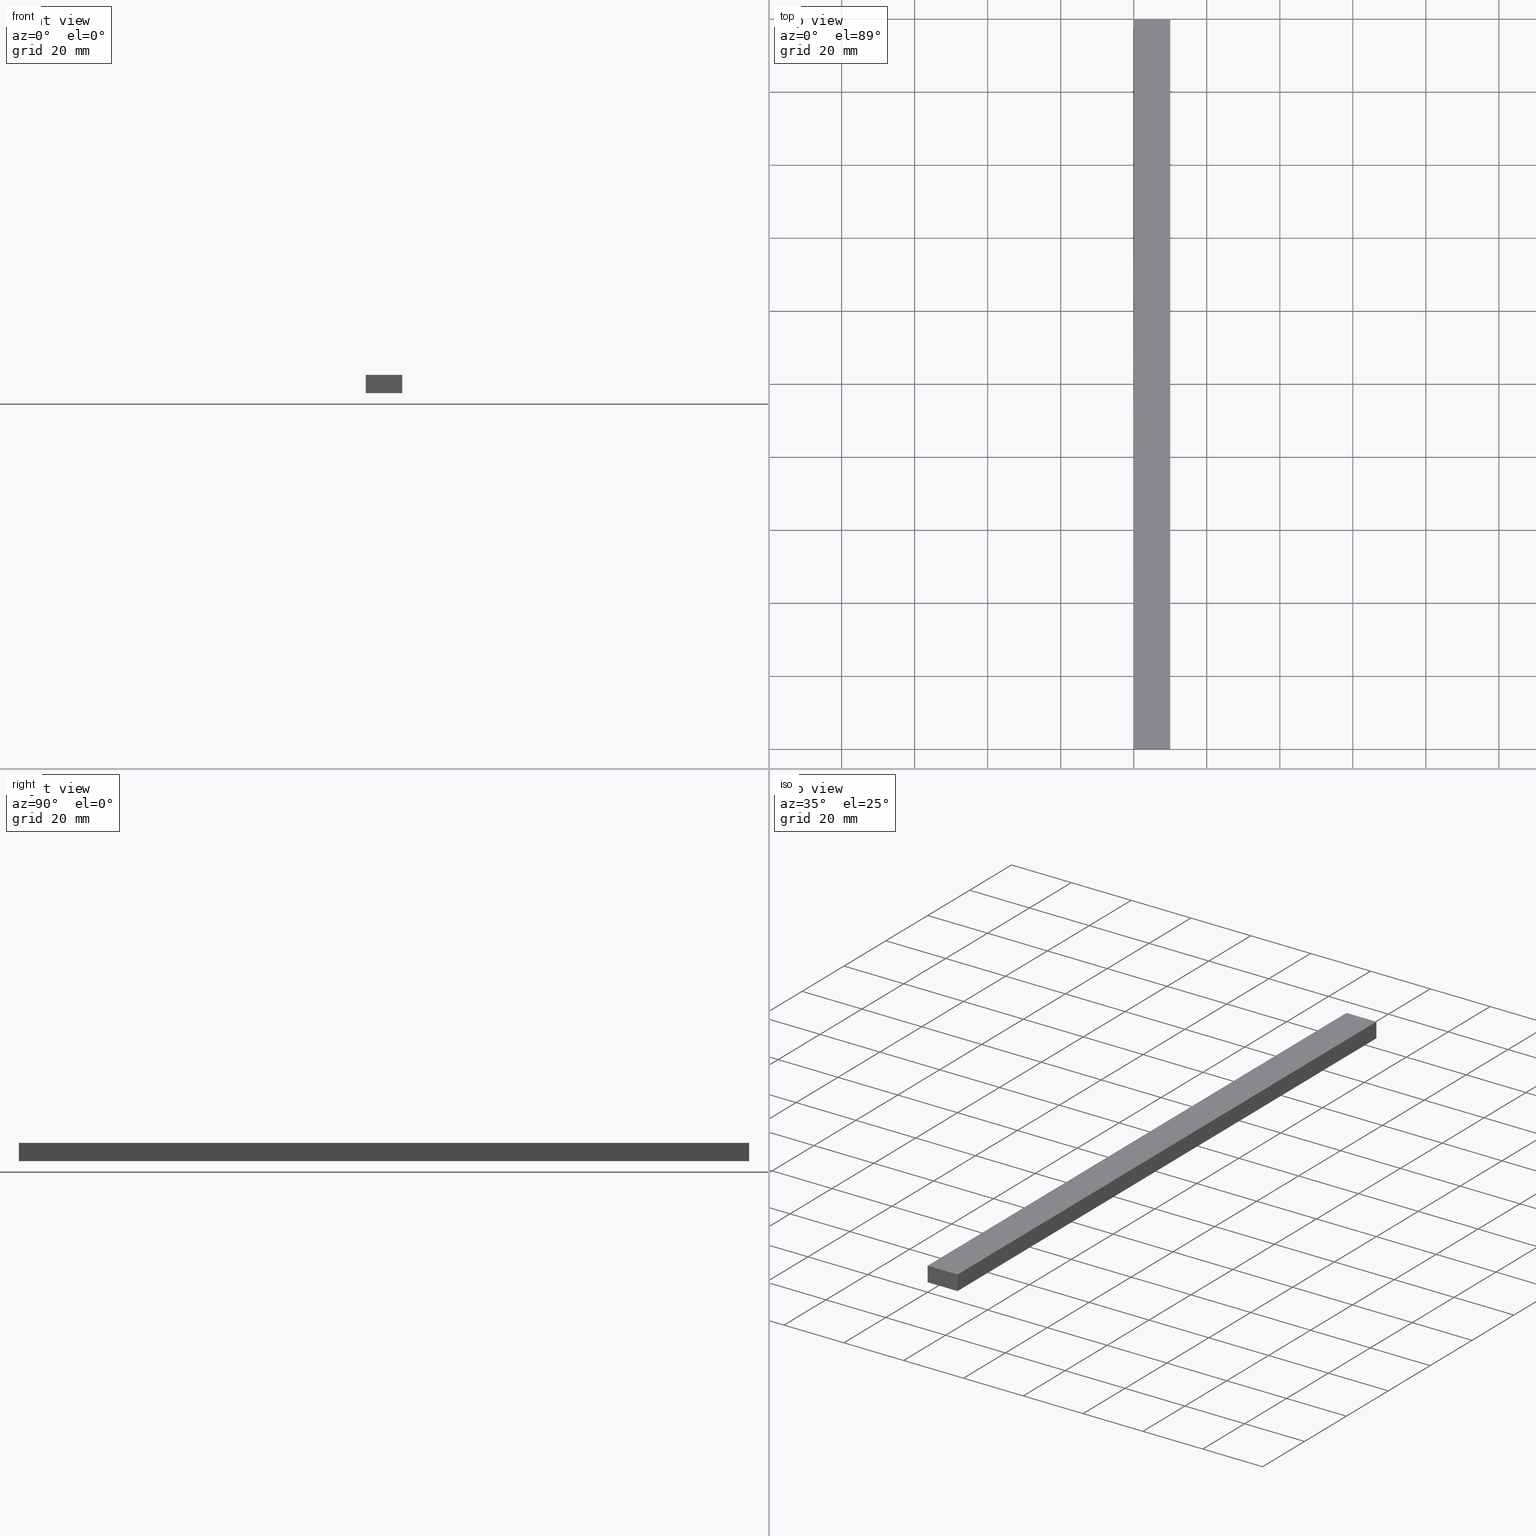
[diagram: canonical four-view strip — front | top / right | iso, engineering-drawing reading convention]
A machine part, canonical four-view strip (front | top / right | iso — engineering-drawing reading convention). The complete STEP part file that produces these views, byte-faithful:
ISO-10303-21;
HEADER;
FILE_DESCRIPTION (( 'STEP AP214' ),
    '1' );
FILE_NAME ('TM_340_2.STEP',
    '2016-05-09T05:05:53',
    ( '' ),
    ( '' ),
    'SwSTEP 2.0',
    'SolidWorks 2015',
    '' );
FILE_SCHEMA (( 'AUTOMOTIVE_DESIGN' ));
ENDSEC;

DATA;
#1 = CARTESIAN_POINT ( 'NONE',  ( 10.00000000000000000, 1000.000000000000000, 5.000000000000000000 ) ) ;
#2 = COLOUR_RGB ( '',0.7921568627450980000, 0.8196078431372548800, 0.9333333333333333500 ) ;
#3 = VERTEX_POINT ( 'NONE', #87 ) ;
#4 = EDGE_CURVE ( 'NONE', #96, #182, #109, .T. ) ;
#5 = UNCERTAINTY_MEASURE_WITH_UNIT (LENGTH_MEASURE( 1.000000000000000100E-005 ), #21, 'distance_accuracy_value', 'NONE');
#6 = LINE ( 'NONE', #1, #53 ) ;
#7 = PRODUCT_DEFINITION ( 'UNKNOWN', '', #19, #93 ) ;
#8 = ORIENTED_EDGE ( 'NONE', *, *, #196, .T. ) ;
#9 = PLANE ( 'NONE',  #213 ) ;
#10 = VECTOR ( 'NONE', #28, 1000.000000000000000 ) ;
#11 = DIRECTION ( 'NONE',  ( 0.0000000000000000000, 0.0000000000000000000, -1.000000000000000000 ) ) ;
#12 =( GEOMETRIC_REPRESENTATION_CONTEXT ( 3 ) GLOBAL_UNCERTAINTY_ASSIGNED_CONTEXT ( ( #83 ) ) GLOBAL_UNIT_ASSIGNED_CONTEXT ( ( #153, #78, #34 ) ) REPRESENTATION_CONTEXT ( 'NONE', 'WORKASPACE' ) );
#13 = APPLICATION_PROTOCOL_DEFINITION ( 'draft international standard', 'automotive_design', 1998, #72 ) ;
#14 = LINE ( 'NONE', #61, #115 ) ;
#15 = DIRECTION ( 'NONE',  ( 1.000000000000000000, 0.0000000000000000000, 0.0000000000000000000 ) ) ;
#16 = VECTOR ( 'NONE', #124, 1000.000000000000000 ) ;
#17 = CARTESIAN_POINT ( 'NONE',  ( 0.0000000000000000000, 1000.000000000000000, 0.0000000000000000000 ) ) ;
#18 = VERTEX_POINT ( 'NONE', #106 ) ;
#19 = PRODUCT_DEFINITION_FORMATION_WITH_SPECIFIED_SOURCE ( 'ANY', '', #126, .NOT_KNOWN. ) ;
#20 = LINE ( 'NONE', #33, #207 ) ;
#21 =( LENGTH_UNIT ( ) NAMED_UNIT ( * ) SI_UNIT ( .MILLI., .METRE. ) );
#22 = PRODUCT_DEFINITION_CONTEXT ( 'detailed design', #72, 'design' ) ;
#23 = VERTEX_POINT ( 'NONE', #84 ) ;
#24 = VECTOR ( 'NONE', #157, 1000.000000000000000 ) ;
#25 = AXIS2_PLACEMENT_3D ( 'NONE', #234, #97, #116 ) ;
#26 = ORIENTED_EDGE ( 'NONE', *, *, #133, .F. ) ;
#27 = DIRECTION ( 'NONE',  ( 1.000000000000000000, 0.0000000000000000000, 0.0000000000000000000 ) ) ;
#28 = DIRECTION ( 'NONE',  ( 0.0000000000000000000, -1.000000000000000000, 0.0000000000000000000 ) ) ;
#29 = PRODUCT_RELATED_PRODUCT_CATEGORY ( 'part', '', ( #126 ) ) ;
#30 = EDGE_CURVE ( 'NONE', #149, #216, #160, .T. ) ;
#31 = DIRECTION ( 'NONE',  ( 0.0000000000000000000, 0.0000000000000000000, -1.000000000000000000 ) ) ;
#32 = ORIENTED_EDGE ( 'NONE', *, *, #223, .T. ) ;
#33 = CARTESIAN_POINT ( 'NONE',  ( 10.00000000000000000, 200.0000000000000000, 5.000000000000000000 ) ) ;
#34 =( NAMED_UNIT ( * ) SI_UNIT ( $, .STERADIAN. ) SOLID_ANGLE_UNIT ( ) );
#35 = AXIS2_PLACEMENT_3D ( 'NONE', #217, #102, #15 ) ;
#36 = EDGE_LOOP ( 'NONE', ( #47, #32, #123, #76 ) ) ;
#37 = PRESENTATION_STYLE_ASSIGNMENT (( #178 ) ) ;
#38 = EDGE_CURVE ( 'NONE', #216, #23, #209, .T. ) ;
#39 = ORIENTED_EDGE ( 'NONE', *, *, #79, .F. ) ;
#40 = CARTESIAN_POINT ( 'NONE',  ( 0.0000000000000000000, 0.0000000000000000000, 0.0000000000000000000 ) ) ;
#41 = APPLICATION_CONTEXT ( 'automotive_design' ) ;
#42 = LINE ( 'NONE', #197, #24 ) ;
#43 = CARTESIAN_POINT ( 'NONE',  ( 0.0000000000000000000, 0.0000000000000000000, 0.0000000000000000000 ) ) ;
#44 =( NAMED_UNIT ( * ) SI_UNIT ( $, .STERADIAN. ) SOLID_ANGLE_UNIT ( ) );
#45 = STYLED_ITEM ( 'NONE', ( #135 ), #231 ) ;
#46 = CARTESIAN_POINT ( 'NONE',  ( 0.0000000000000000000, 1000.000000000000000, 5.000000000000000000 ) ) ;
#47 = ORIENTED_EDGE ( 'NONE', *, *, #4, .T. ) ;
#48 = PRODUCT_DEFINITION_SHAPE ( 'NONE', 'NONE',  #206 ) ;
#49 = PLANE ( 'NONE',  #110 ) ;
#50 = APPLICATION_PROTOCOL_DEFINITION ( 'draft international standard', 'automotive_design', 1998, #201 ) ;
#51 = DIRECTION ( 'NONE',  ( 1.000000000000000000, 0.0000000000000000000, 0.0000000000000000000 ) ) ;
#52 = DIRECTION ( 'NONE',  ( 0.0000000000000000000, 0.0000000000000000000, -1.000000000000000000 ) ) ;
#53 = VECTOR ( 'NONE', #222, 1000.000000000000000 ) ;
#54 = UNCERTAINTY_MEASURE_WITH_UNIT (LENGTH_MEASURE( 1.000000000000000100E-005 ), #155, 'distance_accuracy_value', 'NONE');
#55 = EDGE_CURVE ( 'NONE', #3, #23, #103, .T. ) ;
#56 = EDGE_LOOP ( 'NONE', ( #121, #186, #202, #168 ) ) ;
#57 = FACE_OUTER_BOUND ( 'NONE', #56, .T. ) ;
#58 = ORIENTED_EDGE ( 'NONE', *, *, #79, .T. ) ;
#59 = PRESENTATION_LAYER_ASSIGNMENT (  '', '', ( #45 ) ) ;
#60 = VECTOR ( 'NONE', #51, 1000.000000000000000 ) ;
#61 = CARTESIAN_POINT ( 'NONE',  ( 0.0000000000000000000, 0.0000000000000000000, 5.000000000000000000 ) ) ;
#62 = CARTESIAN_POINT ( 'NONE',  ( 0.0000000000000000000, 1000.000000000000000, 5.000000000000000000 ) ) ;
#63 = DIRECTION ( 'NONE',  ( 0.0000000000000000000, 0.0000000000000000000, 1.000000000000000000 ) ) ;
#64 = ADVANCED_FACE ( 'NONE', ( #205 ), #189, .T. ) ;
#65 =( NAMED_UNIT ( * ) SI_UNIT ( $, .STERADIAN. ) SOLID_ANGLE_UNIT ( ) );
#66 = ORIENTED_EDGE ( 'NONE', *, *, #163, .F. ) ;
#67 = DIRECTION ( 'NONE',  ( 0.0000000000000000000, 0.0000000000000000000, 1.000000000000000000 ) ) ;
#68 = DIRECTION ( 'NONE',  ( -0.0000000000000000000, 1.000000000000000000, 0.0000000000000000000 ) ) ;
#69 = CARTESIAN_POINT ( 'NONE',  ( 0.0000000000000000000, 1000.000000000000000, 0.0000000000000000000 ) ) ;
#70 = LINE ( 'NONE', #46, #111 ) ;
#71 = CARTESIAN_POINT ( 'NONE',  ( 10.00000000000000000, 0.0000000000000000000, 0.0000000000000000000 ) ) ;
#72 = APPLICATION_CONTEXT ( 'automotive_design' ) ;
#73 = MECHANICAL_DESIGN_GEOMETRIC_PRESENTATION_REPRESENTATION (  '', ( #45 ), #81 ) ;
#74 = ORIENTED_EDGE ( 'NONE', *, *, #38, .F. ) ;
#75 = ADVANCED_FACE ( 'NONE', ( #57 ), #49, .F. ) ;
#76 = ORIENTED_EDGE ( 'NONE', *, *, #100, .T. ) ;
#77 = FILL_AREA_STYLE_COLOUR ( '', #131 ) ;
#78 =( NAMED_UNIT ( * ) PLANE_ANGLE_UNIT ( ) SI_UNIT ( $, .RADIAN. ) );
#79 = EDGE_CURVE ( 'NONE', #18, #216, #198, .T. ) ;
#80 =( NAMED_UNIT ( * ) PLANE_ANGLE_UNIT ( ) SI_UNIT ( $, .RADIAN. ) );
#81 =( GEOMETRIC_REPRESENTATION_CONTEXT ( 3 ) GLOBAL_UNCERTAINTY_ASSIGNED_CONTEXT ( ( #54 ) ) GLOBAL_UNIT_ASSIGNED_CONTEXT ( ( #155, #80, #44 ) ) REPRESENTATION_CONTEXT ( 'NONE', 'WORKASPACE' ) );
#82 = CARTESIAN_POINT ( 'NONE',  ( 0.0000000000000000000, 200.0000000000000000, 0.0000000000000000000 ) ) ;
#83 = UNCERTAINTY_MEASURE_WITH_UNIT (LENGTH_MEASURE( 1.000000000000000100E-005 ), #153, 'distance_accuracy_value', 'NONE');
#84 = CARTESIAN_POINT ( 'NONE',  ( 0.0000000000000000000, 0.0000000000000000000, 0.0000000000000000000 ) ) ;
#85 = DIRECTION ( 'NONE',  ( 1.000000000000000000, 0.0000000000000000000, 0.0000000000000000000 ) ) ;
#86 = SURFACE_STYLE_FILL_AREA ( #233 ) ;
#87 = CARTESIAN_POINT ( 'NONE',  ( 0.0000000000000000000, 200.0000000000000000, 0.0000000000000000000 ) ) ;
#88 = AXIS2_PLACEMENT_3D ( 'NONE', #82, #68, #120 ) ;
#89 = APPLICATION_CONTEXT ( 'automotive_design' ) ;
#90 = EDGE_LOOP ( 'NONE', ( #58, #226, #127, #225 ) ) ;
#91 = UNCERTAINTY_MEASURE_WITH_UNIT (LENGTH_MEASURE( 1.000000000000000100E-005 ), #113, 'distance_accuracy_value', 'NONE');
#92 = FACE_OUTER_BOUND ( 'NONE', #90, .T. ) ;
#93 = PRODUCT_DEFINITION_CONTEXT ( 'detailed design', #41, 'design' ) ;
#94 = ORIENTED_EDGE ( 'NONE', *, *, #184, .F. ) ;
#95 = VECTOR ( 'NONE', #11, 1000.000000000000000 ) ;
#96 = VERTEX_POINT ( 'NONE', #105 ) ;
#97 = DIRECTION ( 'NONE',  ( -0.0000000000000000000, 1.000000000000000000, 0.0000000000000000000 ) ) ;
#98 = DIRECTION ( 'NONE',  ( 1.000000000000000000, 0.0000000000000000000, 0.0000000000000000000 ) ) ;
#99 = ORIENTED_EDGE ( 'NONE', *, *, #4, .F. ) ;
#100 = EDGE_CURVE ( 'NONE', #3, #96, #188, .T. ) ;
#101 = DIRECTION ( 'NONE',  ( -1.000000000000000000, 0.0000000000000000000, 0.0000000000000000000 ) ) ;
#102 = DIRECTION ( 'NONE',  ( 0.0000000000000000000, 0.0000000000000000000, 1.000000000000000000 ) ) ;
#103 = LINE ( 'NONE', #69, #10 ) ;
#104 = ORIENTED_EDGE ( 'NONE', *, *, #55, .F. ) ;
#105 = CARTESIAN_POINT ( 'NONE',  ( 0.0000000000000000000, 200.0000000000000000, 5.000000000000000000 ) ) ;
#106 = CARTESIAN_POINT ( 'NONE',  ( 10.00000000000000000, 0.0000000000000000000, 5.000000000000000000 ) ) ;
#107 = CARTESIAN_POINT ( 'NONE',  ( 10.00000000000000000, 1000.000000000000000, 5.000000000000000000 ) ) ;
#108 = ITEM_DEFINED_TRANSFORMATION ( 'NONE', 'NONE', #128,  #35 ) ;
#109 = LINE ( 'NONE', #219, #60 ) ;
#110 = AXIS2_PLACEMENT_3D ( 'NONE', #17, #85, #194 ) ;
#111 = VECTOR ( 'NONE', #210, 1000.000000000000000 ) ;
#112 = EDGE_LOOP ( 'NONE', ( #129, #94, #74, #39 ) ) ;
#113 =( LENGTH_UNIT ( ) NAMED_UNIT ( * ) SI_UNIT ( .MILLI., .METRE. ) );
#114 = CARTESIAN_POINT ( 'NONE',  ( 10.00000000000000000, 200.0000000000000000, 0.0000000000000000000 ) ) ;
#115 = VECTOR ( 'NONE', #98, 1000.000000000000000 ) ;
#116 = DIRECTION ( 'NONE',  ( 1.000000000000000000, 0.0000000000000000000, 0.0000000000000000000 ) ) ;
#117 = AXIS2_PLACEMENT_3D ( 'NONE', #43, #63, #171 ) ;
#118 = SHAPE_REPRESENTATION ( 'rubber foam', ( #35 ), #12 ) ;
#119 = SHAPE_REPRESENTATION ( 'TM_340_2', ( #158, #128 ), #145 ) ;
#120 = DIRECTION ( 'NONE',  ( 1.000000000000000000, 0.0000000000000000000, 0.0000000000000000000 ) ) ;
#121 = ORIENTED_EDGE ( 'NONE', *, *, #184, .T. ) ;
#122 = APPLICATION_PROTOCOL_DEFINITION ( 'draft international standard', 'automotive_design', 1998, #41 ) ;
#123 = ORIENTED_EDGE ( 'NONE', *, *, #163, .T. ) ;
#124 = DIRECTION ( 'NONE',  ( -1.000000000000000000, 0.0000000000000000000, 0.0000000000000000000 ) ) ;
#125 = STYLED_ITEM ( 'NONE', ( #37 ), #151 ) ;
#126 = PRODUCT ( 'rubber foam', 'rubber foam', '', ( #173 ) ) ;
#127 = ORIENTED_EDGE ( 'NONE', *, *, #223, .F. ) ;
#128 = AXIS2_PLACEMENT_3D ( 'NONE', #40, #150, #27 ) ;
#129 = ORIENTED_EDGE ( 'NONE', *, *, #196, .F. ) ;
#130 = DIRECTION ( 'NONE',  ( -1.000000000000000000, 0.0000000000000000000, 0.0000000000000000000 ) ) ;
#131 = COLOUR_RGB ( '',0.7921568627450980000, 0.8196078431372548800, 0.9333333333333333500 ) ;
#132 = PLANE ( 'NONE',  #134 ) ;
#133 = EDGE_CURVE ( 'NONE', #182, #18, #6, .T. ) ;
#134 = AXIS2_PLACEMENT_3D ( 'NONE', #107, #162, #199 ) ;
#135 = PRESENTATION_STYLE_ASSIGNMENT (( #187 ) ) ;
#136 = EDGE_LOOP ( 'NONE', ( #144, #104, #66, #179 ) ) ;
#137 = PRODUCT_DEFINITION_SHAPE ( 'NONE', 'NONE',  #239 ) ;
#138 = FILL_AREA_STYLE_COLOUR ( '', #2 ) ;
#139 = VECTOR ( 'NONE', #174, 1000.000000000000000 ) ;
#140 = DIRECTION ( 'NONE',  ( 0.0000000000000000000, -1.000000000000000000, 0.0000000000000000000 ) ) ;
#141 = CARTESIAN_POINT ( 'NONE',  ( 0.0000000000000000000, 200.0000000000000000, 0.0000000000000000000 ) ) ;
#142 = DIRECTION ( 'NONE',  ( 1.000000000000000000, 0.0000000000000000000, 0.0000000000000000000 ) ) ;
#143 = APPLICATION_PROTOCOL_DEFINITION ( 'draft international standard', 'automotive_design', 1998, #89 ) ;
#144 = ORIENTED_EDGE ( 'NONE', *, *, #38, .T. ) ;
#145 =( GEOMETRIC_REPRESENTATION_CONTEXT ( 3 ) GLOBAL_UNCERTAINTY_ASSIGNED_CONTEXT ( ( #91 ) ) GLOBAL_UNIT_ASSIGNED_CONTEXT ( ( #113, #190, #228 ) ) REPRESENTATION_CONTEXT ( 'NONE', 'WORKASPACE' ) );
#146 = FACE_OUTER_BOUND ( 'NONE', #136, .T. ) ;
#147 = ADVANCED_FACE ( 'NONE', ( #92 ), #132, .F. ) ;
#148 = PRESENTATION_LAYER_ASSIGNMENT (  '', '', ( #125 ) ) ;
#149 = VERTEX_POINT ( 'NONE', #114 ) ;
#150 = DIRECTION ( 'NONE',  ( 0.0000000000000000000, 0.0000000000000000000, 1.000000000000000000 ) ) ;
#151 = MANIFOLD_SOLID_BREP ( '���߰�1', #193 ) ;
#152 = VECTOR ( 'NONE', #140, 1000.000000000000000 ) ;
#153 =( LENGTH_UNIT ( ) NAMED_UNIT ( * ) SI_UNIT ( .MILLI., .METRE. ) );
#154 = ADVANCED_FACE ( 'NONE', ( #146 ), #9, .F. ) ;
#155 =( LENGTH_UNIT ( ) NAMED_UNIT ( * ) SI_UNIT ( .MILLI., .METRE. ) );
#156 = FACE_OUTER_BOUND ( 'NONE', #112, .T. ) ;
#157 = DIRECTION ( 'NONE',  ( 0.0000000000000000000, 0.0000000000000000000, 1.000000000000000000 ) ) ;
#158 = AXIS2_PLACEMENT_3D ( 'NONE', #164, #67, #142 ) ;
#159 = SHAPE_DEFINITION_REPRESENTATION ( #176, #118 ) ;
#160 = LINE ( 'NONE', #221, #152 ) ;
#161 = CARTESIAN_POINT ( 'NONE',  ( 0.0000000000000000000, 0.0000000000000000000, 5.000000000000000000 ) ) ;
#162 = DIRECTION ( 'NONE',  ( -1.000000000000000000, 0.0000000000000000000, 0.0000000000000000000 ) ) ;
#163 = EDGE_CURVE ( 'NONE', #149, #3, #169, .T. ) ;
#164 = CARTESIAN_POINT ( 'NONE',  ( 0.0000000000000000000, 0.0000000000000000000, 0.0000000000000000000 ) ) ;
#165 = MECHANICAL_DESIGN_GEOMETRIC_PRESENTATION_REPRESENTATION (  '', ( #125 ), #175 ) ;
#166 = FACE_OUTER_BOUND ( 'NONE', #224, .T. ) ;
#167 = DIRECTION ( 'NONE',  ( 0.0000000000000000000, 0.0000000000000000000, 1.000000000000000000 ) ) ;
#168 = ORIENTED_EDGE ( 'NONE', *, *, #55, .T. ) ;
#169 = LINE ( 'NONE', #203, #183 ) ;
#170 = VERTEX_POINT ( 'NONE', #161 ) ;
#171 = DIRECTION ( 'NONE',  ( 1.000000000000000000, 0.0000000000000000000, 0.0000000000000000000 ) ) ;
#172 = CARTESIAN_POINT ( 'NONE',  ( 10.00000000000000000, 1000.000000000000000, 0.0000000000000000000 ) ) ;
#173 = PRODUCT_CONTEXT ( 'NONE', #201, 'mechanical' ) ;
#174 = DIRECTION ( 'NONE',  ( 0.0000000000000000000, 0.0000000000000000000, 1.000000000000000000 ) ) ;
#175 =( GEOMETRIC_REPRESENTATION_CONTEXT ( 3 ) GLOBAL_UNCERTAINTY_ASSIGNED_CONTEXT ( ( #5 ) ) GLOBAL_UNIT_ASSIGNED_CONTEXT ( ( #21, #214, #65 ) ) REPRESENTATION_CONTEXT ( 'NONE', 'WORKASPACE' ) );
#176 = PRODUCT_DEFINITION_SHAPE ( 'NONE', 'NONE',  #7 ) ;
#177 = CARTESIAN_POINT ( 'NONE',  ( 10.00000000000000000, 0.0000000000000000000, 5.000000000000000000 ) ) ;
#178 = SURFACE_STYLE_USAGE ( .BOTH. , #181 ) ;
#179 = ORIENTED_EDGE ( 'NONE', *, *, #30, .T. ) ;
#180 = CARTESIAN_POINT ( 'NONE',  ( 10.00000000000000000, 200.0000000000000000, 5.000000000000000000 ) ) ;
#181 = SURFACE_SIDE_STYLE ('',( #86 ) ) ;
#182 = VERTEX_POINT ( 'NONE', #180 ) ;
#183 = VECTOR ( 'NONE', #101, 1000.000000000000000 ) ;
#184 = EDGE_CURVE ( 'NONE', #23, #170, #42, .T. ) ;
#185 = SURFACE_STYLE_FILL_AREA ( #211 ) ;
#186 = ORIENTED_EDGE ( 'NONE', *, *, #200, .F. ) ;
#187 = SURFACE_STYLE_USAGE ( .BOTH. , #227 ) ;
#188 = LINE ( 'NONE', #141, #139 ) ;
#189 = PLANE ( 'NONE',  #88 ) ;
#190 =( NAMED_UNIT ( * ) PLANE_ANGLE_UNIT ( ) SI_UNIT ( $, .RADIAN. ) );
#191 = PLANE ( 'NONE',  #238 ) ;
#192 = PRODUCT_CONTEXT ( 'NONE', #89, 'mechanical' ) ;
#193 = CLOSED_SHELL ( 'NONE', ( #229, #147, #154, #75, #64, #230 ) ) ;
#194 = DIRECTION ( 'NONE',  ( 0.0000000000000000000, 0.0000000000000000000, -1.000000000000000000 ) ) ;
#195 =( REPRESENTATION_RELATIONSHIP ('NONE','NONE', #119, #118 ) REPRESENTATION_RELATIONSHIP_WITH_TRANSFORMATION ( #108 )SHAPE_REPRESENTATION_RELATIONSHIP( ) );
#196 = EDGE_CURVE ( 'NONE', #170, #18, #14, .T. ) ;
#197 = CARTESIAN_POINT ( 'NONE',  ( 0.0000000000000000000, 0.0000000000000000000, 0.0000000000000000000 ) ) ;
#198 = LINE ( 'NONE', #177, #95 ) ;
#199 = DIRECTION ( 'NONE',  ( 0.0000000000000000000, 0.0000000000000000000, 1.000000000000000000 ) ) ;
#200 = EDGE_CURVE ( 'NONE', #96, #170, #70, .T. ) ;
#201 = APPLICATION_CONTEXT ( 'automotive_design' ) ;
#202 = ORIENTED_EDGE ( 'NONE', *, *, #100, .F. ) ;
#203 = CARTESIAN_POINT ( 'NONE',  ( 10.00000000000000000, 200.0000000000000000, 0.0000000000000000000 ) ) ;
#204 = CONTEXT_DEPENDENT_SHAPE_REPRESENTATION ( #195, #137 ) ;
#205 = FACE_OUTER_BOUND ( 'NONE', #36, .T. ) ;
#206 = PRODUCT_DEFINITION ( 'UNKNOWN', '', #220, #22 ) ;
#207 = VECTOR ( 'NONE', #31, 1000.000000000000000 ) ;
#208 = SHAPE_DEFINITION_REPRESENTATION ( #48, #119 ) ;
#209 = LINE ( 'NONE', #71, #16 ) ;
#210 = DIRECTION ( 'NONE',  ( 0.0000000000000000000, -1.000000000000000000, 0.0000000000000000000 ) ) ;
#211 = FILL_AREA_STYLE ('',( #138 ) ) ;
#212 = SHAPE_REPRESENTATION_RELATIONSHIP ( 'NONE' , 'NONE' ,  #118, #231 ) ;
#213 = AXIS2_PLACEMENT_3D ( 'NONE', #172, #167, #237 ) ;
#214 =( NAMED_UNIT ( * ) PLANE_ANGLE_UNIT ( ) SI_UNIT ( $, .RADIAN. ) );
#215 = PLANE ( 'NONE',  #25 ) ;
#216 = VERTEX_POINT ( 'NONE', #236 ) ;
#217 = CARTESIAN_POINT ( 'NONE',  ( 0.0000000000000000000, 0.0000000000000000000, 0.0000000000000000000 ) ) ;
#218 = PRODUCT ( 'TM_340_2', 'TM_340_2', '', ( #192 ) ) ;
#219 = CARTESIAN_POINT ( 'NONE',  ( 0.0000000000000000000, 200.0000000000000000, 5.000000000000000000 ) ) ;
#220 = PRODUCT_DEFINITION_FORMATION_WITH_SPECIFIED_SOURCE ( 'ANY', '', #218, .NOT_KNOWN. ) ;
#221 = CARTESIAN_POINT ( 'NONE',  ( 10.00000000000000000, 1000.000000000000000, 0.0000000000000000000 ) ) ;
#222 = DIRECTION ( 'NONE',  ( 0.0000000000000000000, -1.000000000000000000, 0.0000000000000000000 ) ) ;
#223 = EDGE_CURVE ( 'NONE', #182, #149, #20, .T. ) ;
#224 = EDGE_LOOP ( 'NONE', ( #8, #26, #99, #235 ) ) ;
#225 = ORIENTED_EDGE ( 'NONE', *, *, #133, .T. ) ;
#226 = ORIENTED_EDGE ( 'NONE', *, *, #30, .F. ) ;
#227 = SURFACE_SIDE_STYLE ('',( #185 ) ) ;
#228 =( NAMED_UNIT ( * ) SI_UNIT ( $, .STERADIAN. ) SOLID_ANGLE_UNIT ( ) );
#229 = ADVANCED_FACE ( 'NONE', ( #166 ), #191, .F. ) ;
#230 = ADVANCED_FACE ( 'NONE', ( #156 ), #215, .F. ) ;
#231 = ADVANCED_BREP_SHAPE_REPRESENTATION ( '', ( #151, #35 ), #12 ) ;
#232 = PRODUCT_RELATED_PRODUCT_CATEGORY ( 'part', '', ( #218 ) ) ;
#233 = FILL_AREA_STYLE ('',( #77 ) ) ;
#234 = CARTESIAN_POINT ( 'NONE',  ( 0.0000000000000000000, 0.0000000000000000000, 0.0000000000000000000 ) ) ;
#235 = ORIENTED_EDGE ( 'NONE', *, *, #200, .T. ) ;
#236 = CARTESIAN_POINT ( 'NONE',  ( 10.00000000000000000, 0.0000000000000000000, 0.0000000000000000000 ) ) ;
#237 = DIRECTION ( 'NONE',  ( 1.000000000000000000, 0.0000000000000000000, 0.0000000000000000000 ) ) ;
#238 = AXIS2_PLACEMENT_3D ( 'NONE', #62, #52, #130 ) ;
#239 = NEXT_ASSEMBLY_USAGE_OCCURRENCE ( 'NAUO1', ' ', ' ', #206, #7, $ ) ;
ENDSEC;
END-ISO-10303-21;
